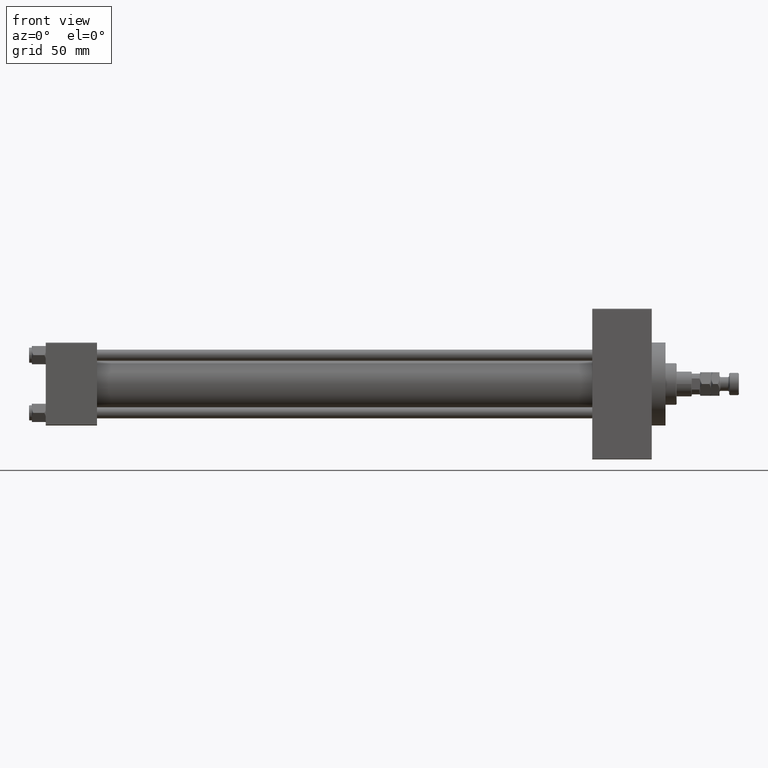
[diagram: clean part render]
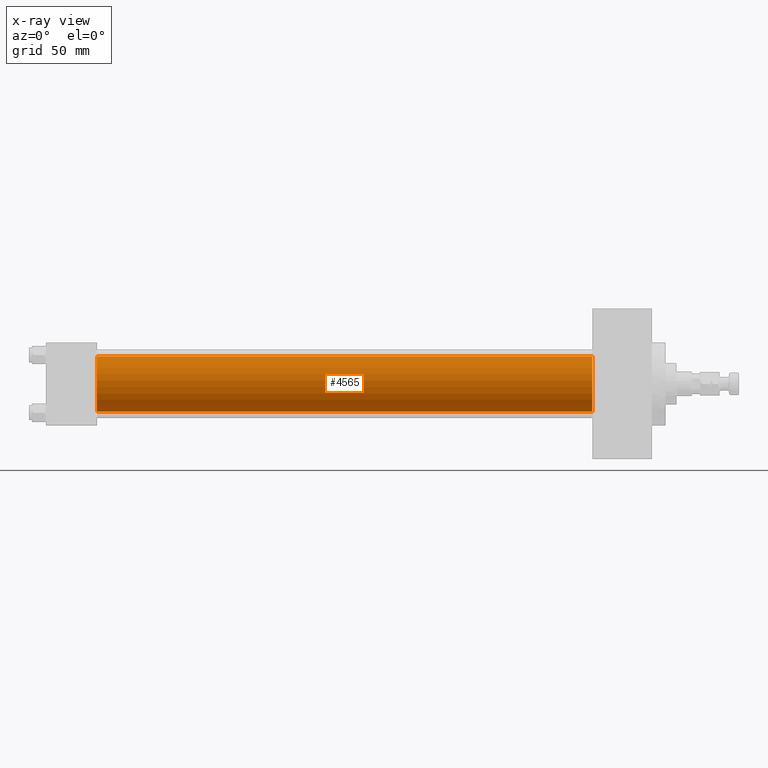
[diagram: x-ray — body ghosted, one internal face saturated and labeled with its STEP entity id]
A machine part, front view, then the same camera in x-ray: the body is ghosted and one INTERNAL B-rep face — a face not visible from any outside direction — is saturated and labeled: STEP entity #4565.
In plain terms, the highlighted cylindrical surface (edge-blend (fillet) strip) has radius 20 mm, axis along (-1, -0, -0).
Its self-contained STEP definition (entity closure, byte-faithful):
#926 = ORIENTED_EDGE ( 'NONE', *, *, #7392, .F. ) ;
#1189 = EDGE_LOOP ( 'NONE', ( #34254, #50731, #48139, #926 ) ) ;
#2077 = DIRECTION ( 'NONE',  ( 0.000000000000000000, 0.000000000000000000, 1.000000000000000000 ) ) ;
#2327 = LINE ( 'NONE', #37396, #6275 ) ;
#4565 = ADVANCED_FACE ( 'NONE', ( #5448 ), #17313, .F. ) ;
#5448 = FACE_OUTER_BOUND ( 'NONE', #1189, .T. ) ;
#6275 = VECTOR ( 'NONE', #49980, 1000.000000000000000 ) ;
#7392 = EDGE_CURVE ( 'NONE', #25257, #45593, #45583, .T. ) ;
#9204 = DIRECTION ( 'NONE',  ( 1.000000000000000000, 0.000000000000000000, 0.000000000000000000 ) ) ;
#13177 = CARTESIAN_POINT ( 'NONE',  ( 394.9999999999999432, -2.602085213965210642E-15, 0.000000000000000000 ) ) ;
#13358 = VECTOR ( 'NONE', #29607, 1000.000000000000000 ) ;
#15858 = CARTESIAN_POINT ( 'NONE',  ( 394.9999999999999432, -1.527916156705046464E-16, -20.00000000000000000 ) ) ;
#15989 = EDGE_CURVE ( 'NONE', #49602, #32720, #2327, .T. ) ;
#16359 = CIRCLE ( 'NONE', #45109, 20.00000000000000000 ) ;
#16962 = CARTESIAN_POINT ( 'NONE',  ( 37.00000000000000000, -2.602085213965210642E-15, 0.000000000000000000 ) ) ;
#17278 = CARTESIAN_POINT ( 'NONE',  ( 37.00000000000000000, -1.527916156705046464E-16, -20.00000000000000000 ) ) ;
#17313 = CYLINDRICAL_SURFACE ( 'NONE', #45383, 20.00000000000000000 ) ;
#18029 = CARTESIAN_POINT ( 'NONE',  ( 394.9999999999999432, -2.602085213965210642E-15, 20.00000000000000000 ) ) ;
#19237 = CARTESIAN_POINT ( 'NONE',  ( 394.9999999999999432, -2.602085213965210642E-15, 20.00000000000000000 ) ) ;
#21166 = DIRECTION ( 'NONE',  ( -1.000000000000000000, -0.000000000000000000, -0.000000000000000000 ) ) ;
#23475 = EDGE_CURVE ( 'NONE', #45593, #32720, #16359, .T. ) ;
#23485 = DIRECTION ( 'NONE',  ( 1.000000000000000000, 0.000000000000000000, 0.000000000000000000 ) ) ;
#25257 = VERTEX_POINT ( 'NONE', #19237 ) ;
#28153 = CIRCLE ( 'NONE', #49480, 20.00000000000000000 ) ;
#29574 = EDGE_CURVE ( 'NONE', #25257, #49602, #28153, .T. ) ;
#29607 = DIRECTION ( 'NONE',  ( -1.000000000000000000, -0.000000000000000000, -0.000000000000000000 ) ) ;
#32720 = VERTEX_POINT ( 'NONE', #17278 ) ;
#34254 = ORIENTED_EDGE ( 'NONE', *, *, #29574, .T. ) ;
#36026 = DIRECTION ( 'NONE',  ( 0.000000000000000000, 0.000000000000000000, -1.000000000000000000 ) ) ;
#37396 = CARTESIAN_POINT ( 'NONE',  ( 394.9999999999999432, -1.527916156705046464E-16, -20.00000000000000000 ) ) ;
#37699 = CARTESIAN_POINT ( 'NONE',  ( 37.00000000000000000, -2.602085213965210642E-15, 20.00000000000000000 ) ) ;
#38686 = CARTESIAN_POINT ( 'NONE',  ( 394.9999999999999432, -2.602085213965210642E-15, 0.000000000000000000 ) ) ;
#43067 = DIRECTION ( 'NONE',  ( 0.000000000000000000, 0.000000000000000000, -1.000000000000000000 ) ) ;
#45109 = AXIS2_PLACEMENT_3D ( 'NONE', #16962, #9204, #36026 ) ;
#45383 = AXIS2_PLACEMENT_3D ( 'NONE', #13177, #21166, #2077 ) ;
#45583 = LINE ( 'NONE', #18029, #13358 ) ;
#45593 = VERTEX_POINT ( 'NONE', #37699 ) ;
#48139 = ORIENTED_EDGE ( 'NONE', *, *, #23475, .F. ) ;
#49480 = AXIS2_PLACEMENT_3D ( 'NONE', #38686, #23485, #43067 ) ;
#49602 = VERTEX_POINT ( 'NONE', #15858 ) ;
#49980 = DIRECTION ( 'NONE',  ( -1.000000000000000000, -0.000000000000000000, -0.000000000000000000 ) ) ;
#50731 = ORIENTED_EDGE ( 'NONE', *, *, #15989, .T. ) ;